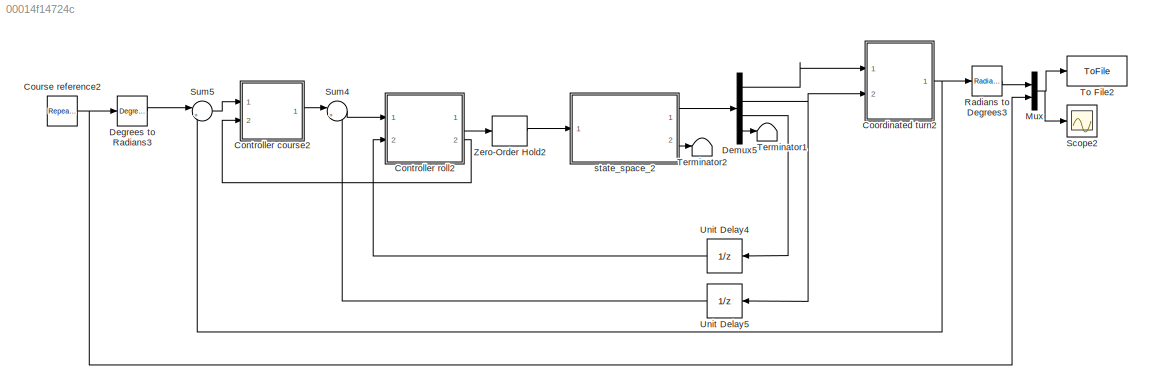
MODEL slx_00014f14724c
KIND model
CONFIG AbsTol = auto
CONFIG EnableMultiTasking = off
CONFIG FixedStep = auto
CONFIG MaxStep = auto
CONFIG MinStep = auto
CONFIG RelTol = 1e-3
CONFIG SampleTimeConstraint = Unconstrained
CONFIG Solver = VariableStepAuto
CONFIG SolverName = VariableStepAuto
CONFIG StartTime = 0.0
CONFIG StopTime = simtime
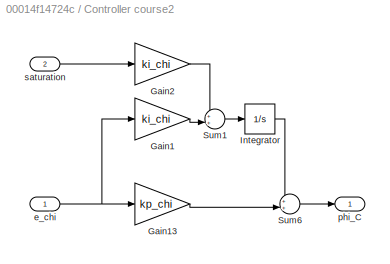
BLOCK [SubSystem] Controller course2
  Ports = [2, 1]
  RequestExecContextInheritance = off
BLOCK [Gain] Controller course2/Gain1
  Gain = ki_chi
  OutDataTypeStr = Inherit: Inherit via internal rule
  ParamDataTypeStr = Inherit: Inherit via internal rule
  SaturateOnIntegerOverflow = off
BLOCK [Gain] Controller course2/Gain13
  Gain = kp_chi
  OutDataTypeStr = Inherit: Inherit via internal rule
  ParamDataTypeStr = Inherit: Inherit via internal rule
  SaturateOnIntegerOverflow = off
BLOCK [Gain] Controller course2/Gain2
  Gain = ki_chi
  OutDataTypeStr = Inherit: Inherit via internal rule
  ParamDataTypeStr = Inherit: Inherit via internal rule
  SaturateOnIntegerOverflow = off
BLOCK [Integrator] Controller course2/Integrator
  Ports = [1, 1]
BLOCK [Sum] Controller course2/Sum1
  IconShape = round
  InputSameDT = off
  Inputs = ++|
  OutDataTypeStr = Inherit: Inherit via internal rule
  Ports = [2, 1]
  SaturateOnIntegerOverflow = off
BLOCK [Sum] Controller course2/Sum6
  IconShape = round
  InputSameDT = off
  Inputs = ++|
  OutDataTypeStr = Inherit: Inherit via internal rule
  Ports = [2, 1]
  SaturateOnIntegerOverflow = off
BLOCK [Inport] Controller course2/e_chi
  IconDisplay = Port number
BLOCK [Outport] Controller course2/phi_C
  IconDisplay = Port number
BLOCK [Inport] Controller course2/saturation
  IconDisplay = Port number
  Port = 2
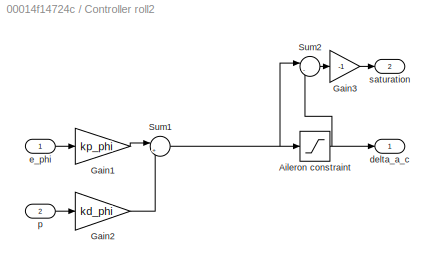
BLOCK [SubSystem] Controller roll2
  Ports = [2, 2]
  RequestExecContextInheritance = off
BLOCK [Saturate] Controller roll2/Aileron constraint 
  InputPortMap = u0
  LowerLimit = -30*deg2rad
  Ports = [1, 1]
  UpperLimit = 30*deg2rad
BLOCK [Gain] Controller roll2/Gain1
  Gain = kp_phi
  OutDataTypeStr = Inherit: Inherit via internal rule
  ParamDataTypeStr = Inherit: Inherit via internal rule
  SaturateOnIntegerOverflow = off
BLOCK [Gain] Controller roll2/Gain2
  Gain = kd_phi
  OutDataTypeStr = Inherit: Inherit via internal rule
  ParamDataTypeStr = Inherit: Inherit via internal rule
  SaturateOnIntegerOverflow = off
BLOCK [Gain] Controller roll2/Gain3
  Gain = -1
  OutDataTypeStr = Inherit: Inherit via internal rule
  ParamDataTypeStr = Inherit: Inherit via internal rule
  SaturateOnIntegerOverflow = off
BLOCK [Sum] Controller roll2/Sum1
  IconShape = round
  InputSameDT = off
  Inputs = |+-
  OutDataTypeStr = Inherit: Inherit via internal rule
  Ports = [2, 1]
  SaturateOnIntegerOverflow = off
BLOCK [Sum] Controller roll2/Sum2
  IconShape = round
  InputSameDT = off
  Inputs = |-+
  OutDataTypeStr = Inherit: Inherit via internal rule
  Ports = [2, 1]
  SaturateOnIntegerOverflow = off
BLOCK [Outport] Controller roll2/delta_a_c
  IconDisplay = Port number
BLOCK [Inport] Controller roll2/e_phi
  IconDisplay = Port number
BLOCK [Inport] Controller roll2/p
  IconDisplay = Port number
  Port = 2
BLOCK [Outport] Controller roll2/saturation
  IconDisplay = Port number
  Port = 2
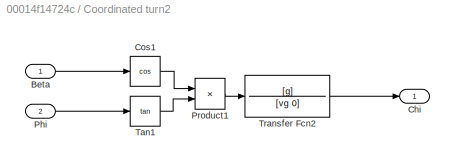
BLOCK [SubSystem] Coordinated turn2
  Ports = [2, 1]
  RequestExecContextInheritance = off
BLOCK [Inport] Coordinated turn2/Beta
  IconDisplay = Port number
BLOCK [Outport] Coordinated turn2/Chi
  IconDisplay = Port number
BLOCK [Trigonometry] Coordinated turn2/Cos1
  Operator = cos
  Ports = [1, 1]
BLOCK [Inport] Coordinated turn2/Phi
  IconDisplay = Port number
  Port = 2
BLOCK [Product] Coordinated turn2/Product1
  InputSameDT = off
  OutDataTypeStr = Inherit: Inherit via internal rule
  Ports = [2, 1]
  RndMeth = Floor
  SaturateOnIntegerOverflow = off
BLOCK [Trigonometry] Coordinated turn2/Tan1
  Operator = tan
  Ports = [1, 1]
BLOCK [TransferFcn] Coordinated turn2/Transfer Fcn2
  Denominator = [vg 0]
  Numerator = [g]
BLOCK [Reference] Course reference2  REF=simulink/Sources/Repeating
Sequence
Stair
  Ports = [0, 1]
  SourceBlock = simulink/Sources/Repeating\nSequence\nStair
  SourceProductBaseCode = SL
  SourceProductName = Simulink
  SourceType = Repeating Sequence Stair
BLOCK [Reference] Degrees to Radians3  REF=simulink_extras/Transformations/Degrees to
Radians
  Ports = [1, 1]
  SourceBlock = simulink_extras/Transformations/Degrees to\nRadians
  SourceProductBaseCode = SL
  SourceProductName = Simulink
  SourceType = DegreesToRadians
BLOCK [Demux] Demux5
  DisplayOption = bar
  Ports = [1, 4]
BLOCK [Mux] Mux
  DisplayOption = bar
  Inputs = 2
  Ports = [2, 1]
BLOCK [Reference] Radians to Degrees3  REF=simulink_extras/Transformations/Radians
to Degrees
  Ports = [1, 1]
  SourceBlock = simulink_extras/Transformations/Radians\nto Degrees
  SourceProductBaseCode = SL
  SourceProductName = Simulink
  SourceType = RadiansToDegrees
BLOCK [Scope] Scope2
  Floating = off
  NumInputPorts = 1
  Ports = [1]
  ScopeSpecificationString = Simulink.scopes.TimeScopeBlockCfg('CurrentConfiguration', extmgr.ConfigurationSet(extmgr.Configuration('Core','General UI',true),extmgr.Configuration('Core','Source UI',true),extmgr.Configuration('Sources','WiredSimulink',true),extmgr.Configuration('Visuals','Time Domain',true,'SerializedDisplays',{struct('MinYLimReal','-1.00000','MaxYLimReal','1.00000','YLabelReal','','MinYLimMag','0.00000','MaxY...<+1457ch>
BLOCK [Sum] Sum4
  IconShape = round
  InputSameDT = off
  Inputs = |+-
  OutDataTypeStr = Inherit: Inherit via internal rule
  Ports = [2, 1]
  SaturateOnIntegerOverflow = off
BLOCK [Sum] Sum5
  IconShape = round
  InputSameDT = off
  Inputs = |+-
  OutDataTypeStr = Inherit: Inherit via internal rule
  Ports = [2, 1]
  SaturateOnIntegerOverflow = off
BLOCK [Terminator] Terminator1
BLOCK [Terminator] Terminator2
BLOCK [ToFile] To File2
  Filename = out/course.mat
  Ports = [1]
BLOCK [UnitDelay] Unit Delay4
  InputProcessing = Elements as channels (sample based)
  SampleTime = 0.01
BLOCK [UnitDelay] Unit Delay5
  InputProcessing = Elements as channels (sample based)
  SampleTime = 0.01
BLOCK [ZeroOrderHold] Zero-Order Hold2
  SampleTime = 0.01
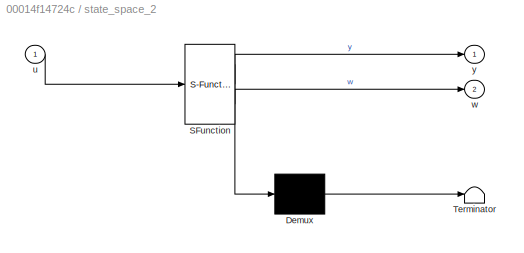
BLOCK [SubSystem] state_space_2
  ErrorFcn = Stateflow.Translate.translate
  PermitHierarchicalResolution = ExplicitOnly
  Ports = [1, 2]
  RequestExecContextInheritance = off
  SFBlockType = MATLAB Function
  TreatAsAtomicUnit = on
BLOCK [Demux] state_space_2/ Demux 
  Outputs = 1
  Ports = [1, 1]
BLOCK [S-Function] state_space_2/ SFunction 
  EnableBusSupport = on
  FunctionName = sf_sfun
  PortCounts = [1 3]
  Ports = [1, 3]
  SFcnIsStateOwnerBlock = off
  SFunctionDeploymentMode = off
  Tag = Stateflow S-Function state_space_w_kalman_3_ideal 5
BLOCK [Terminator] state_space_2/ Terminator 
BLOCK [Inport] state_space_2/u
  IconDisplay = Port number
BLOCK [Outport] state_space_2/w
  IconDisplay = Port number
  Port = 2
BLOCK [Outport] state_space_2/y
  IconDisplay = Port number
LINE Controller course2/Gain13:1 -> Controller course2/Sum6:2
LINE Controller course2/Gain1:1 -> Controller course2/Sum1:2
LINE Controller course2/Gain2:1 -> Controller course2/Sum1:1
LINE Controller course2/Integrator:1 -> Controller course2/Sum6:1
LINE Controller course2/Sum1:1 -> Controller course2/Integrator:1
LINE Controller course2/Sum6:1 -> Controller course2/phi_C:1
NET Controller course2/e_chi:1 -> Controller course2/Gain13:1, Controller course2/Gain1:1
LINE Controller course2/saturation:1 -> Controller course2/Gain2:1
LINE Controller course2:1 -> Sum4:1
NET Controller roll2/Aileron constraint :1 -> Controller roll2/Sum2:2, Controller roll2/delta_a_c:1
LINE Controller roll2/Gain1:1 -> Controller roll2/Sum1:1
LINE Controller roll2/Gain2:1 -> Controller roll2/Sum1:2
LINE Controller roll2/Gain3:1 -> Controller roll2/saturation:1
NET Controller roll2/Sum1:1 -> Controller roll2/Aileron constraint :1, Controller roll2/Sum2:1
LINE Controller roll2/Sum2:1 -> Controller roll2/Gain3:1
LINE Controller roll2/e_phi:1 -> Controller roll2/Gain1:1
LINE Controller roll2/p:1 -> Controller roll2/Gain2:1
LINE Controller roll2:1 -> Zero-Order Hold2:1
LINE Controller roll2:2 -> Controller course2:2
LINE Coordinated turn2/Beta:1 -> Coordinated turn2/Cos1:1
LINE Coordinated turn2/Cos1:1 -> Coordinated turn2/Product1:1
LINE Coordinated turn2/Phi:1 -> Coordinated turn2/Tan1:1
LINE Coordinated turn2/Product1:1 -> Coordinated turn2/Transfer Fcn2:1
LINE Coordinated turn2/Tan1:1 -> Coordinated turn2/Product1:2
LINE Coordinated turn2/Transfer Fcn2:1 -> Coordinated turn2/Chi:1
NET Coordinated turn2:1 -> Radians to Degrees3:1, Sum5:2
NET Course reference2:1 -> Degrees to Radians3:1, Mux:2
LINE Degrees to Radians3:1 -> Sum5:1
LINE Demux5:1 -> Coordinated turn2:1
NET Demux5:2 -> Coordinated turn2:2, Unit Delay5:1
LINE Demux5:3 -> Unit Delay4:1
LINE Demux5:4 -> Terminator1:1
NET Mux:1 -> Scope2:1, To File2:1
LINE Radians to Degrees3:1 -> Mux:1
LINE Sum4:1 -> Controller roll2:1
LINE Sum5:1 -> Controller course2:1
LINE Unit Delay4:1 -> Controller roll2:2
LINE Unit Delay5:1 -> Sum4:2
LINE Zero-Order Hold2:1 -> state_space_2:1
LINE state_space_2:1 -> Demux5:1
LINE state_space_2:2 -> Terminator2:1
note: NET lines group one-source signal fan-out (src -> all destinations, sorted); 1:1 wires keep LINE
CHART state_space_2 states=1 transitions=1
  STATE_LABEL 'eML_blk_kernel()'
  STATE_LABEL 'SCRIPT:\nfunction [y, w] = state_space_3(u)\n% Generate the output of the state space\n\n    % Persistent variables to be kept between function calls\n    persistent counter; % Variable for checking if it is the first iteration.\n    persistent x;       % The state x\n    \n   % The next line is necessary for generating unique process noise for every simulation.\n   % Otherwise, the noise will be equal eve...<+1607ch>'
